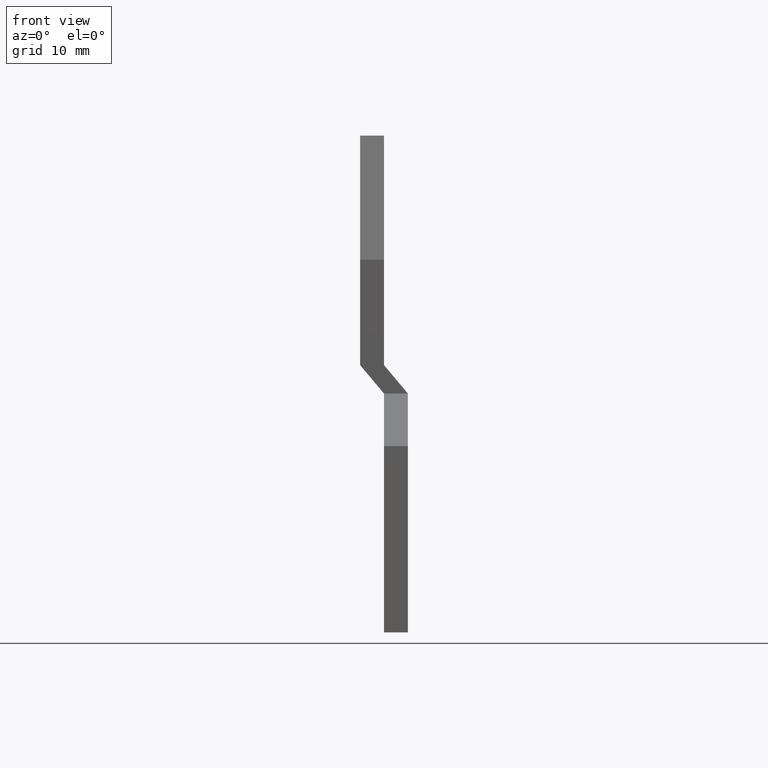
[diagram: clean part render]
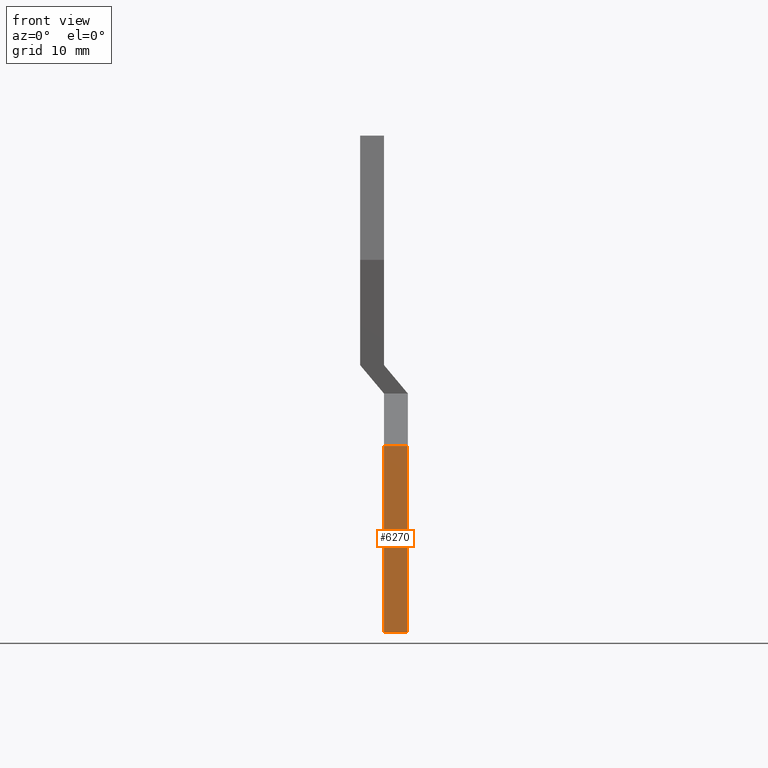
[diagram: same view with one face highlighted and labeled with its STEP entity id]
A machine part, front view. The second image highlights one B-rep face of the part: STEP entity #6270.
In plain terms, the highlighted planar face has unit normal (0, -1, -0).
Its self-contained STEP definition (entity closure, byte-faithful):
#3290=CARTESIAN_POINT('',(50.661538,26.130769,-2.5));
#3300=VERTEX_POINT('',#3290);
#3330=CARTESIAN_POINT('',(50.661538,0.,-2.5));
#3340=DIRECTION('',(0.,1.,0.));
#3350=VECTOR('',#3340,1.);
#3360=LINE('',#3330,#3350);
#3370=CARTESIAN_POINT('',(50.661538,6.630769,-2.5));
#3380=VERTEX_POINT('',#3370);
#3390=EDGE_CURVE('',#3380,#3300,#3360,.T.);
#4570=CARTESIAN_POINT('',(50.661538,6.630769,0.));
#4580=DIRECTION('',(0.,0.,-1.));
#4590=VECTOR('',#4580,1.);
#4600=LINE('',#4570,#4590);
#4610=CARTESIAN_POINT('',(50.661538,6.630769,-5.));
#4620=VERTEX_POINT('',#4610);
#4630=EDGE_CURVE('',#3380,#4620,#4600,.T.);
#5310=CARTESIAN_POINT('',(50.661538,26.130769,0.));
#5320=DIRECTION('',(0.,0.,-1.));
#5330=VECTOR('',#5320,1.);
#5340=LINE('',#5310,#5330);
#5350=CARTESIAN_POINT('',(50.661538,26.130769,-5.));
#5360=VERTEX_POINT('',#5350);
#5370=EDGE_CURVE('',#3300,#5360,#5340,.T.);
#5700=CARTESIAN_POINT('',(50.661538,0.,-5.));
#5710=DIRECTION('',(0.,1.,0.));
#5720=VECTOR('',#5710,1.);
#5730=LINE('',#5700,#5720);
#5740=EDGE_CURVE('',#4620,#5360,#5730,.T.);
#6160=CARTESIAN_POINT('',(50.661538,26.130769,-5.));
#6170=DIRECTION('',(1.,0.,0.));
#6180=DIRECTION('',(0.,1.,0.));
#6190=AXIS2_PLACEMENT_3D('',#6160,#6170,#6180);
#6200=PLANE('',#6190);
#6210=ORIENTED_EDGE('',*,*,#4630,.T.);
#6220=ORIENTED_EDGE('',*,*,#3390,.F.);
#6230=ORIENTED_EDGE('',*,*,#5370,.F.);
#6240=ORIENTED_EDGE('',*,*,#5740,.T.);
#6250=EDGE_LOOP('',(#6240,#6230,#6220,#6210));
#6260=FACE_OUTER_BOUND('',#6250,.T.);
#6270=ADVANCED_FACE('',(#6260),#6200,.T.);